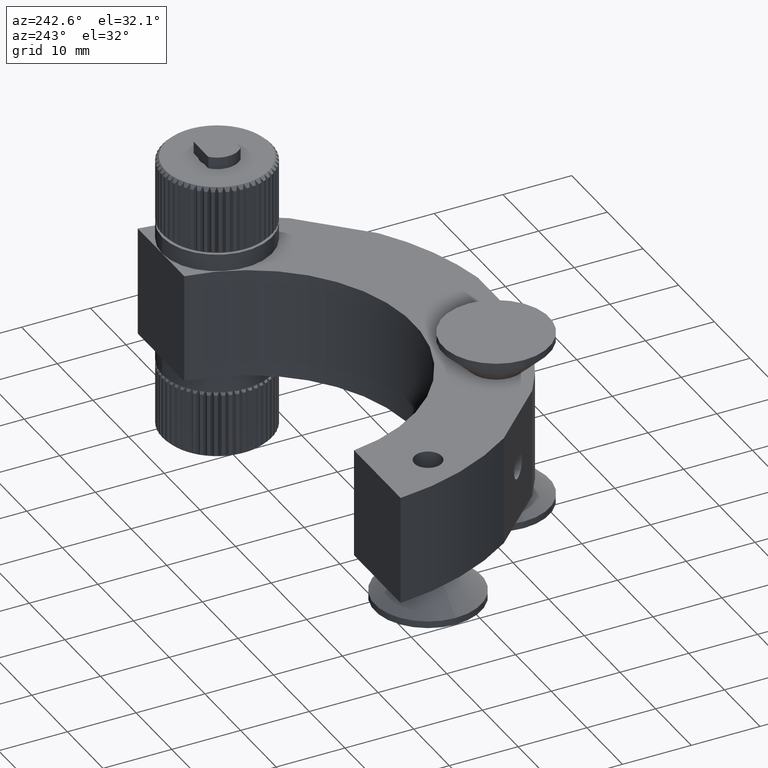
[diagram: clean part render]
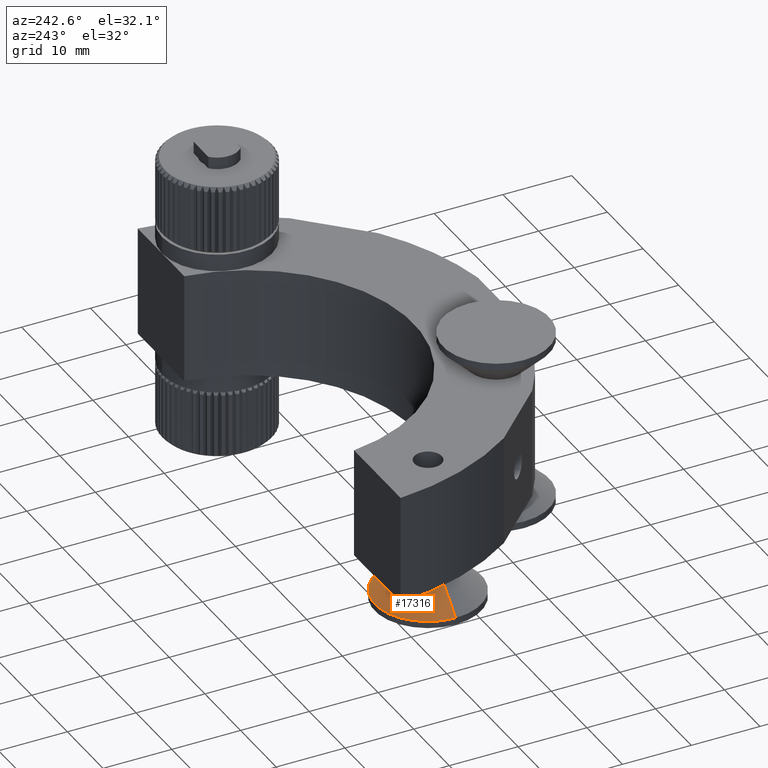
[diagram: same view with one face highlighted and labeled with its STEP entity id]
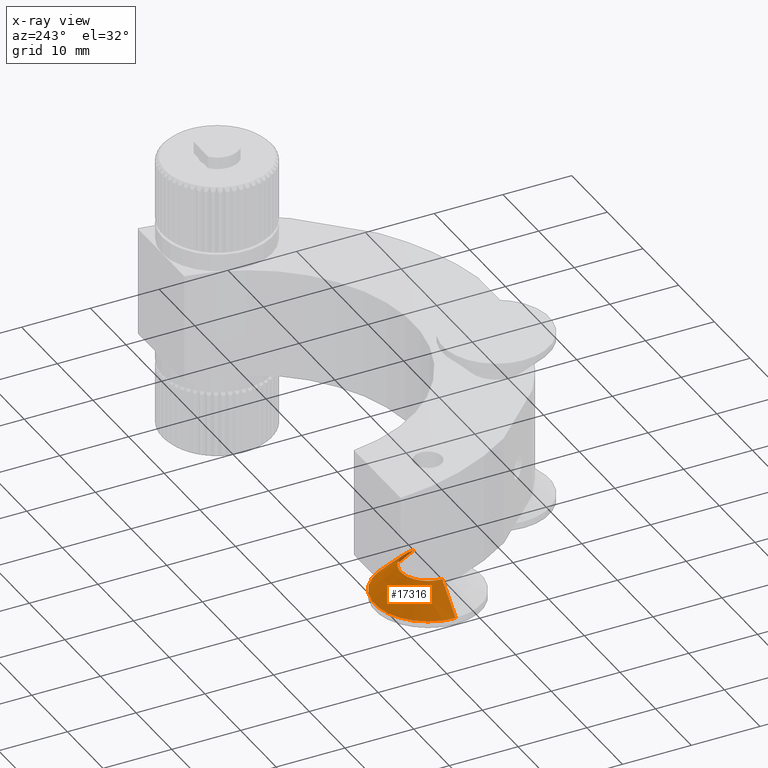
[diagram: x-ray of the same camera — body ghosted, the highlighted face saturated]
A machine part, auxiliary view. The second image highlights one B-rep face of the part: STEP entity #17316.
The next image is the same camera in x-ray: the body ghosted, the highlighted face saturated — about 2% of this face is hidden behind the body in this view.
In plain terms, the highlighted conical surface has half-angle 45 deg.
Its self-contained STEP definition (entity closure, byte-faithful):
#191 = VERTEX_POINT ( 'NONE', #7455 ) ;
#345 = DIRECTION ( 'NONE',  ( 1.000000000000000000, -2.238352872228138200E-016, 0.0000000000000000000 ) ) ;
#383 = EDGE_CURVE ( 'NONE', #14914, #10258, #5256, .T. ) ;
#843 = CARTESIAN_POINT ( 'NONE',  ( -35.32698113458547300, -8.520121532718347300, -11.80000000000001100 ) ) ;
#950 = DIRECTION ( 'NONE',  ( -3.451266460341926600E-030, -2.572474473922256200E-031, -1.000000000000000000 ) ) ;
#1149 = CARTESIAN_POINT ( 'NONE',  ( -19.82698113458547300, -8.520121532718350800, -11.80000000000001100 ) ) ;
#1405 = CARTESIAN_POINT ( 'NONE',  ( -19.82698113458547300, -8.520121532718350800, -11.80000000000001100 ) ) ;
#1571 = AXIS2_PLACEMENT_3D ( 'NONE', #14490, #10020, #345 ) ;
#1885 = VECTOR ( 'NONE', #13169, 1000.000000000000000 ) ;
#2034 = VERTEX_POINT ( 'NONE', #6555 ) ;
#2214 = VECTOR ( 'NONE', #9454, 1000.000000000000000 ) ;
#5206 = CIRCLE ( 'NONE', #1571, 7.750000000000000000 ) ;
#5256 = LINE ( 'NONE', #1149, #2214 ) ;
#6555 = CARTESIAN_POINT ( 'NONE',  ( -31.52698113458546200, -8.520121532718347300, -8.000000000000000000 ) ) ;
#6607 = FACE_OUTER_BOUND ( 'NONE', #10825, .T. ) ;
#7455 = CARTESIAN_POINT ( 'NONE',  ( -35.32698113458547300, -8.520121532718405900, -11.80000000000001100 ) ) ;
#8104 = DIRECTION ( 'NONE',  ( 1.000000000000000000, -2.238352872228138200E-016, 0.0000000000000000000 ) ) ;
#8563 = DIRECTION ( 'NONE',  ( 1.000000000000000000, -4.391705002472942400E-016, 0.0000000000000000000 ) ) ;
#8798 = ORIENTED_EDGE ( 'NONE', *, *, #383, .T. ) ;
#9053 = LINE ( 'NONE', #843, #1885 ) ;
#9255 = CARTESIAN_POINT ( 'NONE',  ( -27.57698113458547300, -8.520121532718349000, -11.80000000000001100 ) ) ;
#9384 = CARTESIAN_POINT ( 'NONE',  ( -23.62698113458548800, -8.520121532718350800, -8.000000000000000000 ) ) ;
#9454 = DIRECTION ( 'NONE',  ( 0.7071067811865475700, -1.732515816478722200E-016, -0.7071067811865474600 ) ) ;
#10020 = DIRECTION ( 'NONE',  ( -3.451266460341926600E-030, -2.572474473922256200E-031, -1.000000000000000000 ) ) ;
#10258 = VERTEX_POINT ( 'NONE', #1405 ) ;
#10825 = EDGE_LOOP ( 'NONE', ( #15192, #11554, #8798, #17956 ) ) ;
#11414 = CARTESIAN_POINT ( 'NONE',  ( -27.57698113458547300, -8.520121532718349000, -8.000000000000000000 ) ) ;
#11540 = CONICAL_SURFACE ( 'NONE', #16118, 7.750000000000000000, 0.7853981633974483900 ) ;
#11554 = ORIENTED_EDGE ( 'NONE', *, *, #13127, .T. ) ;
#12263 = CIRCLE ( 'NONE', #13158, 3.949999999999988200 ) ;
#12886 = DIRECTION ( 'NONE',  ( -3.451266460341926600E-030, -2.572474473922256200E-031, -1.000000000000000000 ) ) ;
#13127 = EDGE_CURVE ( 'NONE', #2034, #14914, #12263, .T. ) ;
#13158 = AXIS2_PLACEMENT_3D ( 'NONE', #11414, #12886, #8563 ) ;
#13169 = DIRECTION ( 'NONE',  ( -0.7071067811865475700, 8.665597602432253300E-017, -0.7071067811865474600 ) ) ;
#14490 = CARTESIAN_POINT ( 'NONE',  ( -27.57698113458547300, -8.520121532718349000, -11.80000000000001100 ) ) ;
#14914 = VERTEX_POINT ( 'NONE', #9384 ) ;
#15192 = ORIENTED_EDGE ( 'NONE', *, *, #17240, .F. ) ;
#16118 = AXIS2_PLACEMENT_3D ( 'NONE', #9255, #950, #8104 ) ;
#16653 = EDGE_CURVE ( 'NONE', #191, #10258, #5206, .T. ) ;
#17240 = EDGE_CURVE ( 'NONE', #2034, #191, #9053, .T. ) ;
#17316 = ADVANCED_FACE ( 'NONE', ( #6607 ), #11540, .T. ) ;
#17956 = ORIENTED_EDGE ( 'NONE', *, *, #16653, .F. ) ;